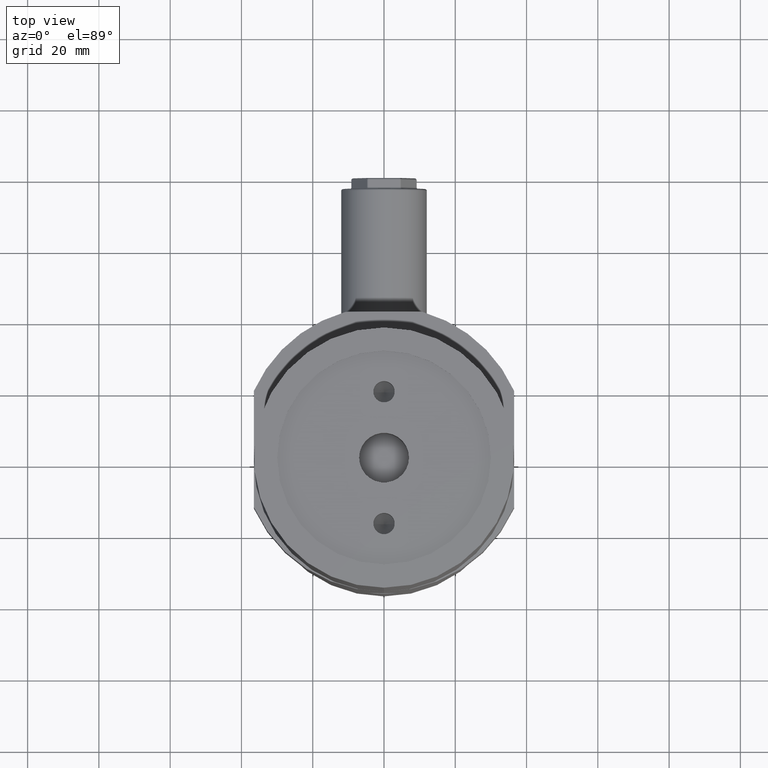
[diagram: clean part render]
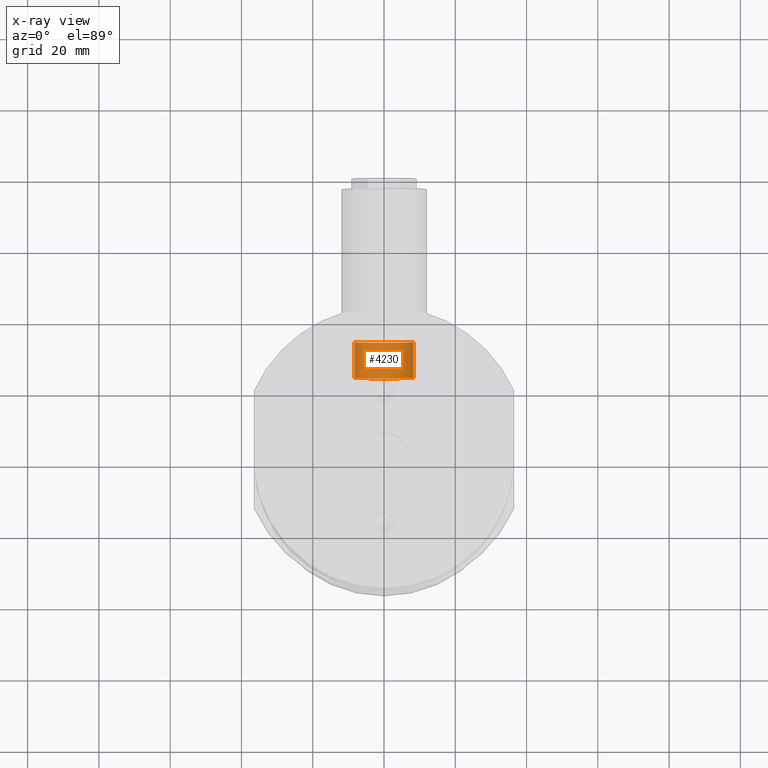
[diagram: x-ray — body ghosted, one internal face saturated and labeled with its STEP entity id]
A machine part, top view, then the same camera in x-ray: the body is ghosted and one INTERNAL B-rep face — a face not visible from any outside direction — is saturated and labeled: STEP entity #4230.
In plain terms, the highlighted cylindrical surface (edge-blend (fillet) strip) has radius 8.33 mm, axis along (0, 1, 0).
Its self-contained STEP definition (entity closure, byte-faithful):
#119 = AXIS2_PLACEMENT_3D ( 'NONE', #4673, #1579, #1118 ) ;
#281 = DIRECTION ( 'NONE',  ( 5.310837394501010000E-035, 1.000000000000000000, 1.224606353822383900E-016 ) ) ;
#289 = EDGE_CURVE ( 'NONE', #6214, #2215, #3505, .T. ) ;
#734 = CARTESIAN_POINT ( 'NONE',  ( 8.329999999999968100, 24.49000000000025100, -122.7000000000000000 ) ) ;
#986 = ORIENTED_EDGE ( 'NONE', *, *, #289, .F. ) ;
#1020 = CARTESIAN_POINT ( 'NONE',  ( -8.330000000000033800, 24.49000000000025100, -122.7000000000000000 ) ) ;
#1118 = DIRECTION ( 'NONE',  ( 1.000000000000000000, 0.0000000000000000000, 0.0000000000000000000 ) ) ;
#1203 = VERTEX_POINT ( 'NONE', #1020 ) ;
#1265 = CYLINDRICAL_SURFACE ( 'NONE', #5743, 8.330000000000000100 ) ;
#1291 = DIRECTION ( 'NONE',  ( 1.000000000000000000, 0.0000000000000000000, 0.0000000000000000000 ) ) ;
#1362 = EDGE_CURVE ( 'NONE', #4152, #2215, #3394, .T. ) ;
#1475 = CARTESIAN_POINT ( 'NONE',  ( 8.329999999999968100, 23.49000000000025100, -122.7000000000000000 ) ) ;
#1537 = ORIENTED_EDGE ( 'NONE', *, *, #3506, .T. ) ;
#1560 = DIRECTION ( 'NONE',  ( -1.000000000000000000, 0.0000000000000000000, 0.0000000000000000000 ) ) ;
#1579 = DIRECTION ( 'NONE',  ( -5.310837394501010000E-035, -1.000000000000000000, -1.224606353822383900E-016 ) ) ;
#1672 = AXIS2_PLACEMENT_3D ( 'NONE', #4084, #5078, #1560 ) ;
#2215 = VERTEX_POINT ( 'NONE', #5715 ) ;
#2244 = EDGE_CURVE ( 'NONE', #1203, #4152, #3923, .T. ) ;
#2749 = CARTESIAN_POINT ( 'NONE',  ( -8.330000000000033800, 34.49000000000000200, -122.7000000000000000 ) ) ;
#2955 = ORIENTED_EDGE ( 'NONE', *, *, #1362, .T. ) ;
#3268 = EDGE_LOOP ( 'NONE', ( #1537, #5580, #2955, #986 ) ) ;
#3394 = CIRCLE ( 'NONE', #119, 8.330000000000000100 ) ;
#3505 = LINE ( 'NONE', #1475, #4656 ) ;
#3506 = EDGE_CURVE ( 'NONE', #6214, #1203, #3825, .T. ) ;
#3825 = CIRCLE ( 'NONE', #1672, 8.330000000000000100 ) ;
#3923 = LINE ( 'NONE', #6196, #5566 ) ;
#3957 = DIRECTION ( 'NONE',  ( 5.310837394501010000E-035, 1.000000000000000000, 1.224606353822383900E-016 ) ) ;
#4084 = CARTESIAN_POINT ( 'NONE',  ( -3.363637493530799600E-014, 24.49000000000025100, -122.7000000000000000 ) ) ;
#4152 = VERTEX_POINT ( 'NONE', #2749 ) ;
#4230 = ADVANCED_FACE ( 'NONE', ( #5611 ), #1265, .T. ) ;
#4656 = VECTOR ( 'NONE', #3957, 1000.000000000000000 ) ;
#4673 = CARTESIAN_POINT ( 'NONE',  ( -3.363637493530799600E-014, 34.49000000000000200, -122.7000000000000000 ) ) ;
#4915 = CARTESIAN_POINT ( 'NONE',  ( -3.363637493530799600E-014, 23.49000000000025100, -122.7000000000000000 ) ) ;
#5078 = DIRECTION ( 'NONE',  ( 5.310837394501010000E-035, 1.000000000000000000, 1.224606353822383900E-016 ) ) ;
#5566 = VECTOR ( 'NONE', #5782, 1000.000000000000000 ) ;
#5580 = ORIENTED_EDGE ( 'NONE', *, *, #2244, .T. ) ;
#5611 = FACE_OUTER_BOUND ( 'NONE', #3268, .T. ) ;
#5715 = CARTESIAN_POINT ( 'NONE',  ( 8.329999999999968100, 34.49000000000000200, -122.7000000000000000 ) ) ;
#5743 = AXIS2_PLACEMENT_3D ( 'NONE', #4915, #281, #1291 ) ;
#5782 = DIRECTION ( 'NONE',  ( 5.310837394501010000E-035, 1.000000000000000000, 1.224606353822383900E-016 ) ) ;
#6196 = CARTESIAN_POINT ( 'NONE',  ( -8.330000000000033800, 23.49000000000025100, -122.7000000000000000 ) ) ;
#6214 = VERTEX_POINT ( 'NONE', #734 ) ;